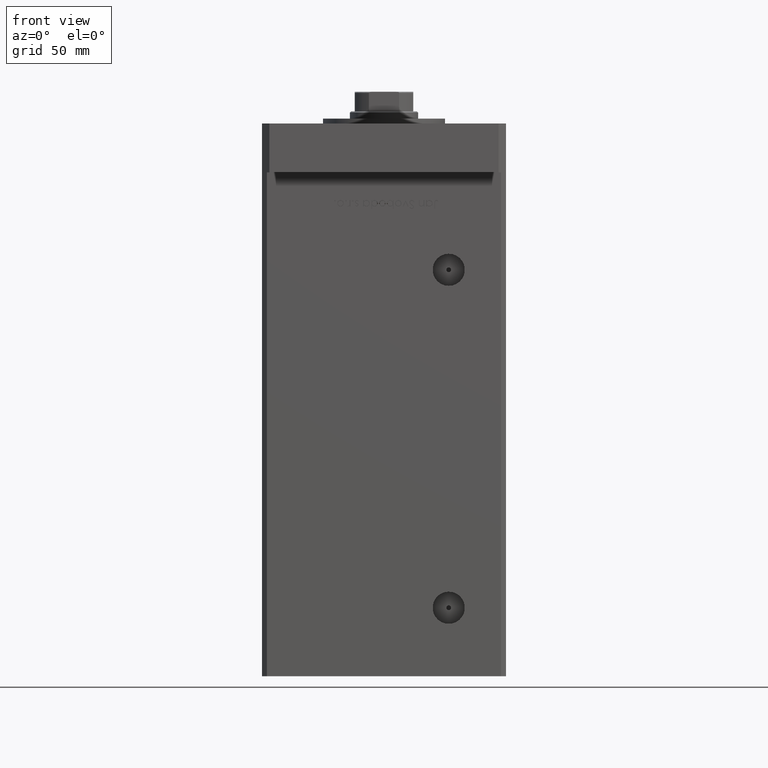
[diagram: clean part render]
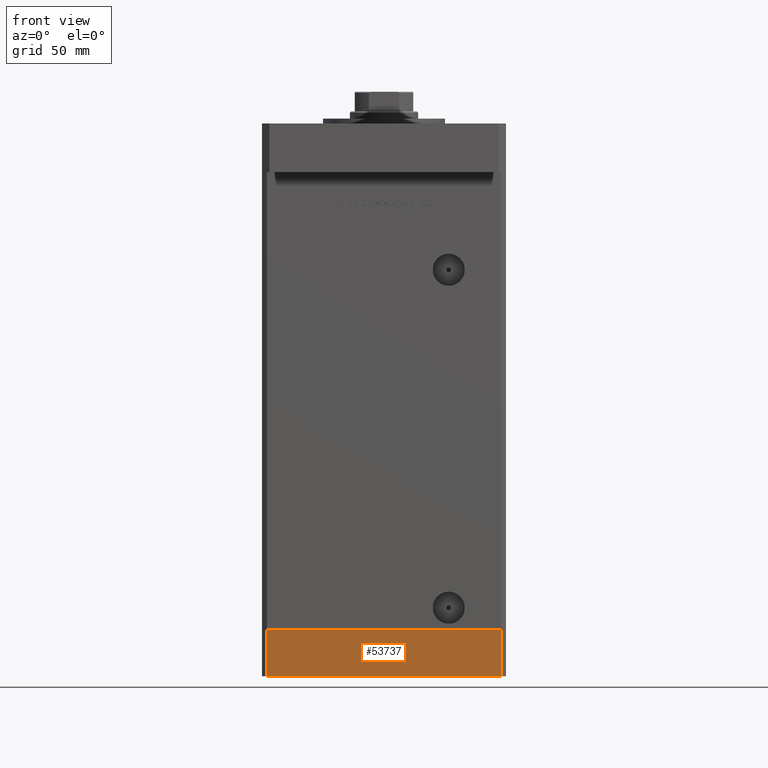
[diagram: same view with one face highlighted and labeled with its STEP entity id]
A machine part, front view. The second image highlights one B-rep face of the part: STEP entity #53737.
In plain terms, the highlighted planar face has unit normal (0, -1, -0).
Its self-contained STEP definition (entity closure, byte-faithful):
#1003 = VECTOR ( 'NONE', #17068, 1000.000000000000000 ) ;
#1400 = PLANE ( 'NONE',  #24343 ) ;
#3295 = ORIENTED_EDGE ( 'NONE', *, *, #52449, .F. ) ;
#3316 = DIRECTION ( 'NONE',  ( 0.000000000000000000, 0.000000000000000000, 1.000000000000000000 ) ) ;
#4355 = VERTEX_POINT ( 'NONE', #29877 ) ;
#4894 = VERTEX_POINT ( 'NONE', #31969 ) ;
#5148 = LINE ( 'NONE', #8162, #33909 ) ;
#8162 = CARTESIAN_POINT ( 'NONE',  ( -47.99999999999999289, -43.50000000000001421, -19.00000000000000000 ) ) ;
#8876 = CARTESIAN_POINT ( 'NONE',  ( 47.99999999999999289, -43.50000000000001421, -19.00000000000000000 ) ) ;
#9720 = CARTESIAN_POINT ( 'NONE',  ( 47.99999999999999289, -43.50000000000001421, 0.000000000000000000 ) ) ;
#9869 = DIRECTION ( 'NONE',  ( 0.000000000000000000, -0.000000000000000000, -1.000000000000000000 ) ) ;
#11098 = CARTESIAN_POINT ( 'NONE',  ( -47.99999999999999289, -43.50000000000001421, 0.000000000000000000 ) ) ;
#14532 = EDGE_CURVE ( 'NONE', #4894, #19823, #50579, .T. ) ;
#17068 = DIRECTION ( 'NONE',  ( 0.000000000000000000, 0.000000000000000000, 1.000000000000000000 ) ) ;
#19823 = VERTEX_POINT ( 'NONE', #9720 ) ;
#22123 = ORIENTED_EDGE ( 'NONE', *, *, #50713, .T. ) ;
#22146 = FACE_OUTER_BOUND ( 'NONE', #45713, .T. ) ;
#24343 = AXIS2_PLACEMENT_3D ( 'NONE', #30575, #47212, #9869 ) ;
#24858 = LINE ( 'NONE', #52956, #46503 ) ;
#25768 = ORIENTED_EDGE ( 'NONE', *, *, #14532, .T. ) ;
#26106 = EDGE_CURVE ( 'NONE', #4355, #40320, #24858, .T. ) ;
#29728 = VECTOR ( 'NONE', #31261, 1000.000000000000000 ) ;
#29877 = CARTESIAN_POINT ( 'NONE',  ( -47.99999999999999289, -43.50000000000001421, -19.00000000000000000 ) ) ;
#30575 = CARTESIAN_POINT ( 'NONE',  ( -47.99999999999999289, -43.50000000000001421, -19.00000000000000000 ) ) ;
#31261 = DIRECTION ( 'NONE',  ( 1.000000000000000000, 0.000000000000000000, 0.000000000000000000 ) ) ;
#31969 = CARTESIAN_POINT ( 'NONE',  ( 47.99999999999999289, -43.50000000000001421, -19.00000000000000000 ) ) ;
#33909 = VECTOR ( 'NONE', #49595, 1000.000000000000000 ) ;
#40320 = VERTEX_POINT ( 'NONE', #53175 ) ;
#45713 = EDGE_LOOP ( 'NONE', ( #3295, #48098, #22123, #25768 ) ) ;
#46503 = VECTOR ( 'NONE', #3316, 1000.000000000000000 ) ;
#47212 = DIRECTION ( 'NONE',  ( 0.000000000000000000, -1.000000000000000000, 0.000000000000000000 ) ) ;
#47629 = LINE ( 'NONE', #11098, #29728 ) ;
#48098 = ORIENTED_EDGE ( 'NONE', *, *, #26106, .F. ) ;
#49595 = DIRECTION ( 'NONE',  ( 1.000000000000000000, 0.000000000000000000, 0.000000000000000000 ) ) ;
#50579 = LINE ( 'NONE', #8876, #1003 ) ;
#50713 = EDGE_CURVE ( 'NONE', #4355, #4894, #5148, .T. ) ;
#52449 = EDGE_CURVE ( 'NONE', #40320, #19823, #47629, .T. ) ;
#52956 = CARTESIAN_POINT ( 'NONE',  ( -47.99999999999999289, -43.50000000000001421, -19.00000000000000000 ) ) ;
#53175 = CARTESIAN_POINT ( 'NONE',  ( -47.99999999999999289, -43.50000000000001421, 0.000000000000000000 ) ) ;
#53737 = ADVANCED_FACE ( 'NONE', ( #22146 ), #1400, .T. ) ;